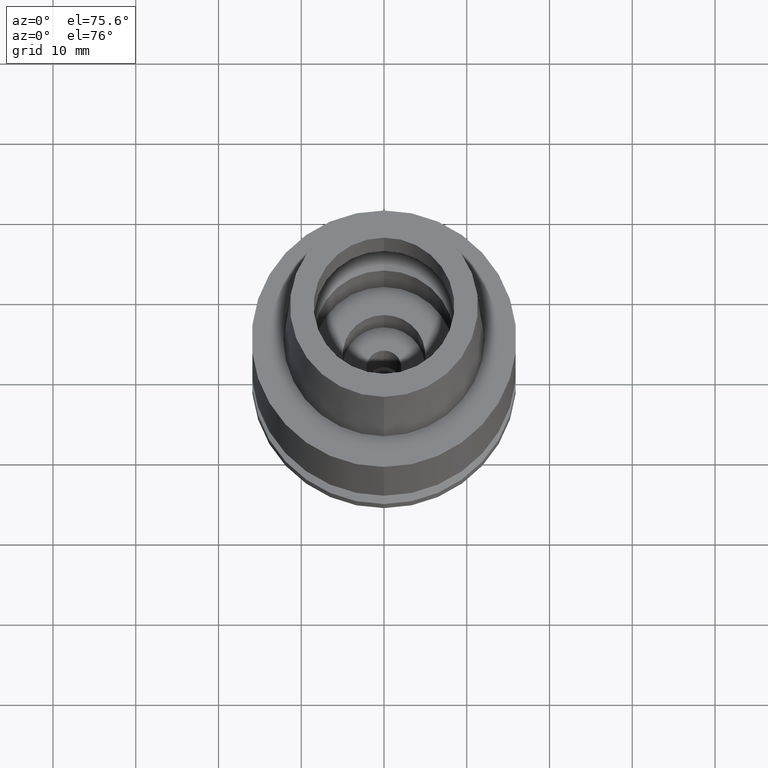
[diagram: clean part render]
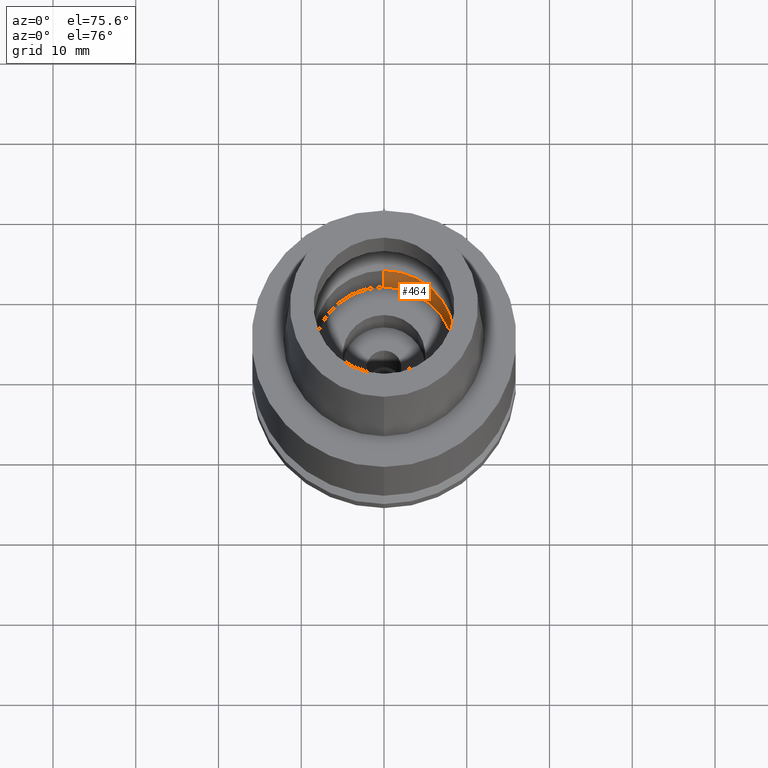
[diagram: same view with one face highlighted and labeled with its STEP entity id]
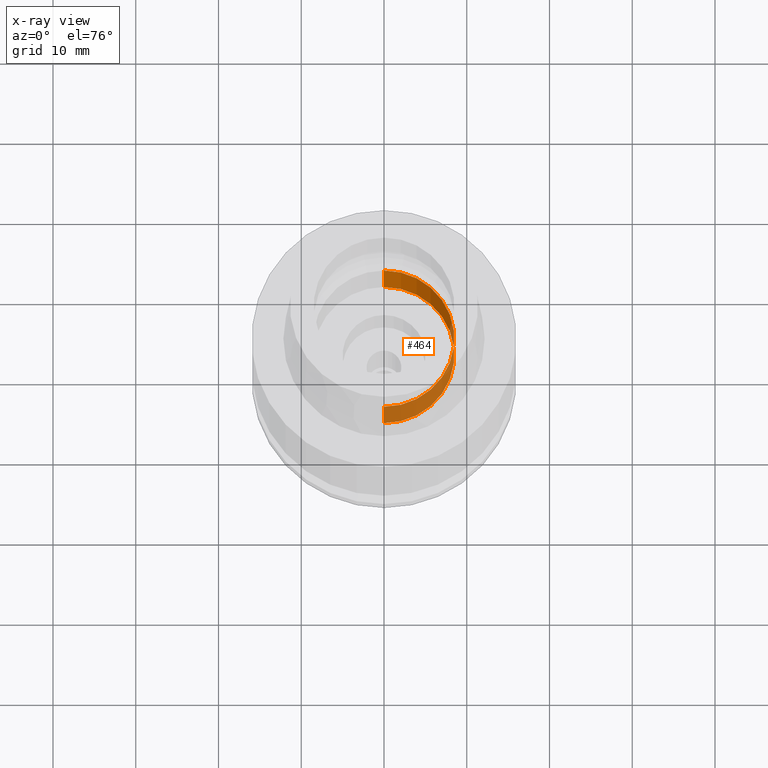
[diagram: x-ray of the same camera — body ghosted, the highlighted face saturated]
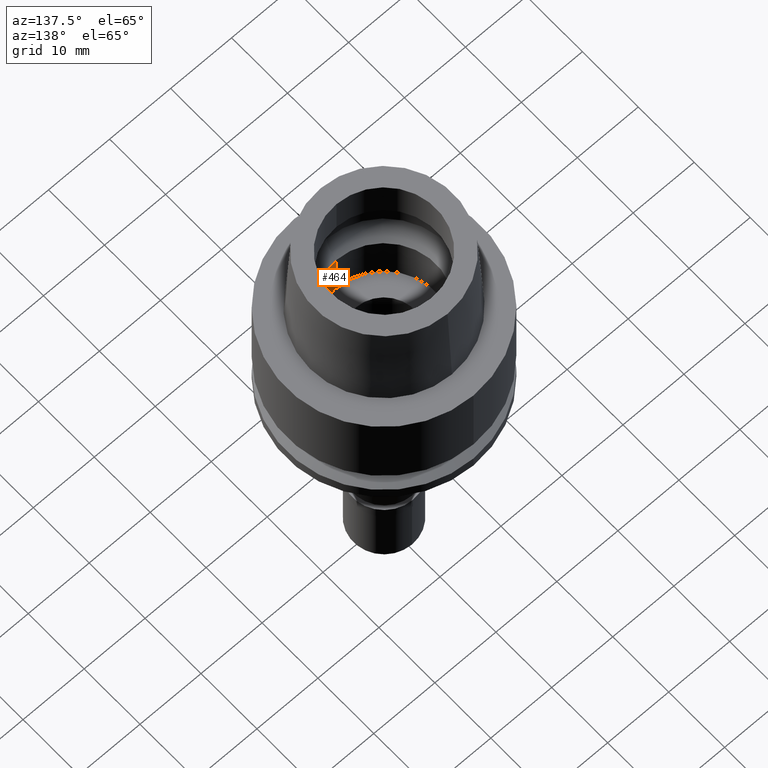
[diagram: same view with one face highlighted and labeled with its STEP entity id]
A machine part, auxiliary view. The second image highlights one B-rep face of the part: STEP entity #464.
The next image is the same camera in x-ray: the body ghosted, the highlighted face saturated — about 52% of this face is hidden behind the body in this view.
A second angle (auxiliary view) of the same face is appended — the face is thin or edge-on in the first view.
In plain terms, the highlighted cylindrical surface (partial cylindrical patch) has radius 8.5 mm, axis along (0, 0, -1).
Its self-contained STEP definition (entity closure, byte-faithful):
#22 = CARTESIAN_POINT ( 'NONE',  ( 0.0000000000000000000, 8.500000000000000000, 0.0000000000000000000 ) ) ;
#25 = VECTOR ( 'NONE', #767, 1000.000000000000000 ) ;
#40 = DIRECTION ( 'NONE',  ( 0.0000000000000000000, 1.000000000000000000, 0.0000000000000000000 ) ) ;
#235 = CARTESIAN_POINT ( 'NONE',  ( 0.0000000000000000000, 0.0000000000000000000, -7.950000000000000178 ) ) ;
#273 = VERTEX_POINT ( 'NONE', #2027 ) ;
#294 = ORIENTED_EDGE ( 'NONE', *, *, #2529, .T. ) ;
#369 = CARTESIAN_POINT ( 'NONE',  ( 0.0000000000000000000, -8.500000000000000000, -7.950000000000000178 ) ) ;
#464 = ADVANCED_FACE ( 'NONE', ( #885 ), #1333, .F. ) ;
#553 = VERTEX_POINT ( 'NONE', #22 ) ;
#738 = ORIENTED_EDGE ( 'NONE', *, *, #1791, .T. ) ;
#767 = DIRECTION ( 'NONE',  ( 0.0000000000000000000, 0.0000000000000000000, 1.000000000000000000 ) ) ;
#807 = CARTESIAN_POINT ( 'NONE',  ( 0.0000000000000000000, 0.0000000000000000000, 0.0000000000000000000 ) ) ;
#885 = FACE_OUTER_BOUND ( 'NONE', #2176, .T. ) ;
#938 = DIRECTION ( 'NONE',  ( 0.0000000000000000000, 0.0000000000000000000, -1.000000000000000000 ) ) ;
#1074 = AXIS2_PLACEMENT_3D ( 'NONE', #235, #2106, #40 ) ;
#1333 = CYLINDRICAL_SURFACE ( 'NONE', #2481, 8.500000000000000000 ) ;
#1406 = DIRECTION ( 'NONE',  ( 0.0000000000000000000, 0.0000000000000000000, 1.000000000000000000 ) ) ;
#1416 = DIRECTION ( 'NONE',  ( 0.0000000000000000000, -1.000000000000000000, 0.0000000000000000000 ) ) ;
#1450 = EDGE_CURVE ( 'NONE', #1616, #553, #1818, .T. ) ;
#1530 = CARTESIAN_POINT ( 'NONE',  ( 0.0000000000000000000, 0.0000000000000000000, 19.61500000000000199 ) ) ;
#1599 = LINE ( 'NONE', #369, #2544 ) ;
#1600 = LINE ( 'NONE', #2626, #25 ) ;
#1611 = DIRECTION ( 'NONE',  ( 0.0000000000000000000, 0.0000000000000000000, 1.000000000000000000 ) ) ;
#1616 = VERTEX_POINT ( 'NONE', #1781 ) ;
#1741 = DIRECTION ( 'NONE',  ( 0.0000000000000000000, -1.000000000000000000, 0.0000000000000000000 ) ) ;
#1781 = CARTESIAN_POINT ( 'NONE',  ( 0.0000000000000000000, -8.500000000000000000, 0.0000000000000000000 ) ) ;
#1791 = EDGE_CURVE ( 'NONE', #1792, #1616, #1599, .T. ) ;
#1792 = VERTEX_POINT ( 'NONE', #1840 ) ;
#1818 = CIRCLE ( 'NONE', #2674, 8.500000000000000000 ) ;
#1840 = CARTESIAN_POINT ( 'NONE',  ( 0.0000000000000000000, -8.500000000000000000, -7.950000000000000178 ) ) ;
#2027 = CARTESIAN_POINT ( 'NONE',  ( 0.0000000000000000000, 8.500000000000000000, -7.950000000000000178 ) ) ;
#2106 = DIRECTION ( 'NONE',  ( 0.0000000000000000000, 0.0000000000000000000, -1.000000000000000000 ) ) ;
#2164 = CIRCLE ( 'NONE', #1074, 8.500000000000000000 ) ;
#2176 = EDGE_LOOP ( 'NONE', ( #294, #738, #2249, #2421 ) ) ;
#2249 = ORIENTED_EDGE ( 'NONE', *, *, #1450, .T. ) ;
#2412 = EDGE_CURVE ( 'NONE', #273, #553, #1600, .T. ) ;
#2421 = ORIENTED_EDGE ( 'NONE', *, *, #2412, .F. ) ;
#2481 = AXIS2_PLACEMENT_3D ( 'NONE', #1530, #938, #1741 ) ;
#2529 = EDGE_CURVE ( 'NONE', #273, #1792, #2164, .T. ) ;
#2544 = VECTOR ( 'NONE', #1406, 1000.000000000000000 ) ;
#2626 = CARTESIAN_POINT ( 'NONE',  ( 0.0000000000000000000, 8.500000000000000000, -7.950000000000000178 ) ) ;
#2674 = AXIS2_PLACEMENT_3D ( 'NONE', #807, #1611, #1416 ) ;